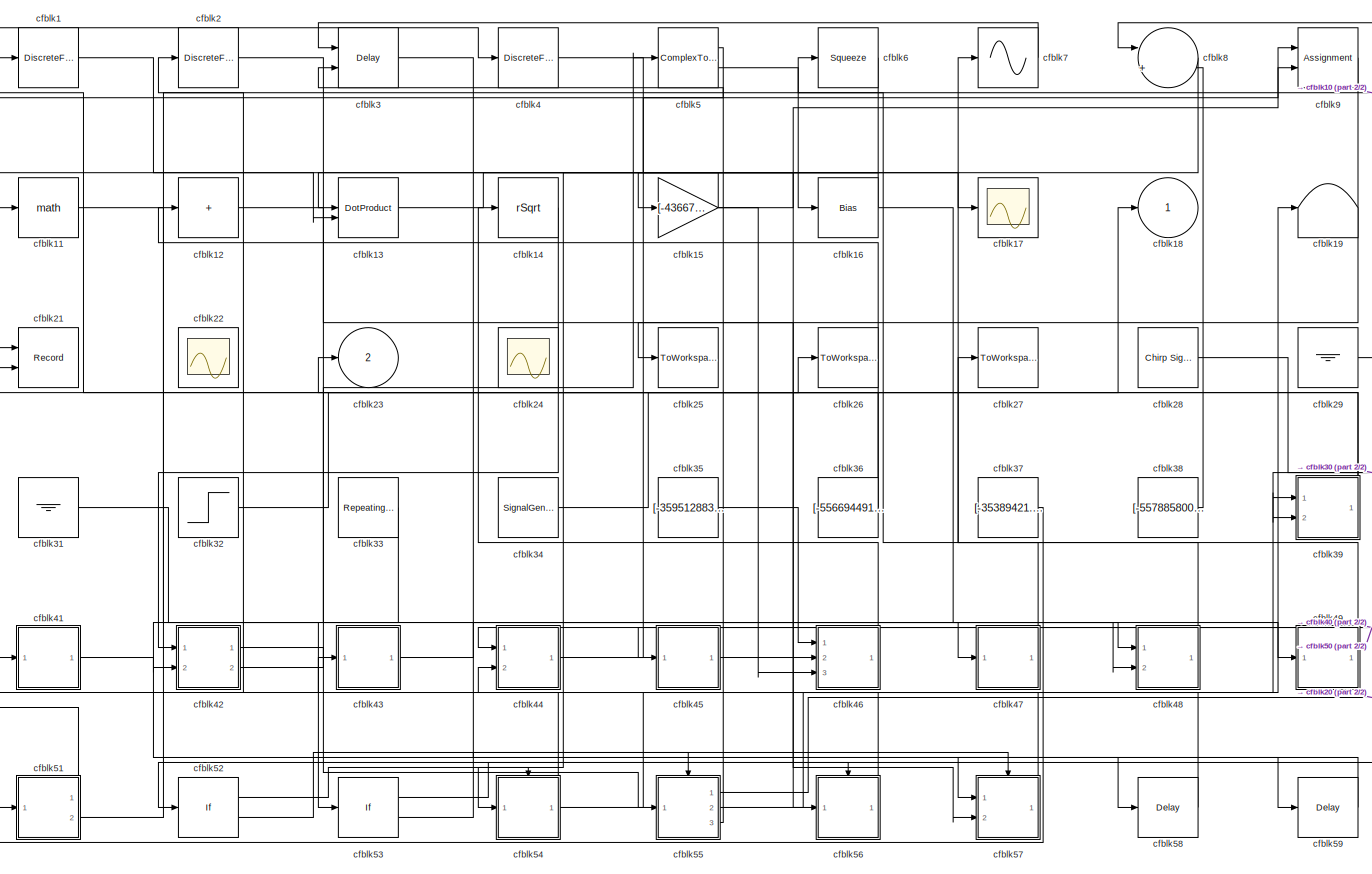
[diagram: root canvas - part 1/2, most of the canvas]
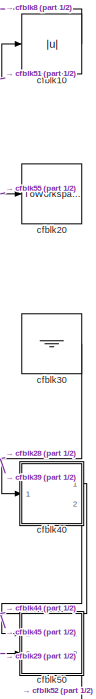
[diagram: root canvas - part 2/2, right side, full height]
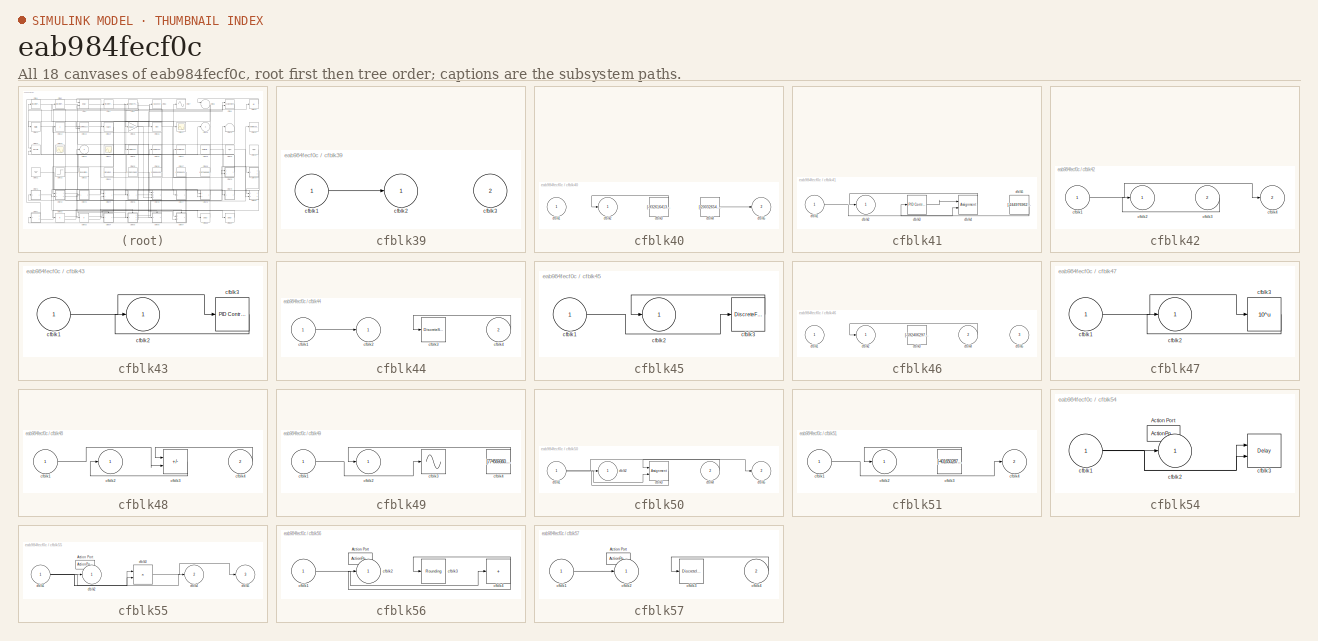
[diagram: thumbnail index - all 18 canvases of the model, root first then tree order]
MODEL slx_eab984fecf0c
KIND model
CONFIG AbsTol = auto
CONFIG EnableMultiTasking = off
CONFIG FixedStep = auto
CONFIG MaxStep = auto
CONFIG MinStep = auto
CONFIG RelTol = 1e-3
CONFIG SampleTimeConstraint = Unconstrained
CONFIG SolverName = VariableStepAuto
CONFIG StartTime = 0.0
CONFIG StopTime = 10.0
BLOCK [DiscreteFilter] cfblk1
  InputPortMap = u0
  Ports = [1, 1]
  SampleTime = 1
BLOCK [Abs] cfblk10
  SaturateOnIntegerOverflow = off
BLOCK [Math] cfblk11
  Ports = [1, 1]
BLOCK [Sum] cfblk12
  IconShape = rectangular
  Inputs = +
  Ports = [1, 1]
BLOCK [DotProduct] cfblk13
  OutDataTypeStr = Inherit: Inherit via internal rule
BLOCK [Sqrt] cfblk14
  AlgorithmType = Newton-Raphson
  Operator = rSqrt
BLOCK [Gain] cfblk15
  Gain = [-436679313.010726]
BLOCK [Bias] cfblk16
  Bias = [-38199327.268970]
  SaturateOnIntegerOverflow = off
BLOCK [Scope] cfblk17
  Floating = off
  NumInputPorts = 1
  Ports = [1]
BLOCK [Outport] cfblk18
BLOCK [Terminator] cfblk19
BLOCK [DiscreteFir] cfblk2
  InputPortMap = u0
  OutputPortMap = o0
  Ports = [1, 1]
  SampleTime = 1
BLOCK [ToWorkspace] cfblk20
  FixptAsFi = on
  MaxDataPoints = inf
  Ports = [1]
  SampleTime = -1
  SaveFormat = Timeseries
  VariableName = rfpiwdc
BLOCK [Record] cfblk21
  CompatibilityTag = XY
  FileSettingsInternal = {"entries":[{"content":{"excelSettings":{"content":{},"type":"Streamout.ExcelSettings"}},"type":"Streamout.FileSettingStorage","uuid":"e8f057ec-b7da-4268-aa5f-d7ed06ed3431"}],"packageUris":["http://schema.mathworks.com/mf0/streamout_blocks/R2020a"],"version":"1.0"}
  Layout = [1 1]
  Ports = [2]
  SignalsInternal = {"entries":[{"content":{"signals":[{"content":{"blockPath":["sampleModel11/cfblk21"],"channel":[],"dimensions":[1],"domain":"sampleModel11/cfblk21","lineColor":"#a2142f","plots":[1],"port":1,"sid":[""],"signalID":390,"signalName":"cfblk5:1"},"type":"RecordBlkView.Signal","uuid":"705c9504-6d64-4ff9-88c8-a38f2396cd2a"},{"content":{"blockPath":["sampleModel11/cfblk21"],"channel":[],"dimensions":[1],"...<+378ch>
  VisualizationBindings = {"xyplotplugin":{"info":[{"series":[{"bindingParametersList":[{"parameter":"X-Axis","signalID":390,"signalName":"cfblk5:1"},{"parameter":"Y-Axis","signalID":394,"signalName":"cfblk36"}],"seriesID":31932}],"subplotID":1}]}}
BLOCK [Scope] cfblk22
  Floating = on
  NumInputPorts = 1
  Ports = []
BLOCK [Outport] cfblk23
  Port = 2
BLOCK [Scope] cfblk24
  Floating = on
  NumInputPorts = 1
  Ports = []
BLOCK [ToWorkspace] cfblk25
  FixptAsFi = on
  MaxDataPoints = inf
  Ports = [1]
  SampleTime = -1
  SaveFormat = Timeseries
  VariableName = yddeclr
BLOCK [ToWorkspace] cfblk26
  FixptAsFi = on
  MaxDataPoints = inf
  Ports = [1]
  SampleTime = -1
  SaveFormat = Timeseries
  VariableName = vusmsyn
BLOCK [ToWorkspace] cfblk27
  FixptAsFi = on
  MaxDataPoints = inf
  Ports = [1]
  SampleTime = -1
  SaveFormat = Timeseries
  VariableName = huggmqp
BLOCK [Reference] cfblk28  REF=simulink/Sources/Chirp Signal
  Ports = [0, 1]
  SourceBlock = simulink/Sources/Chirp Signal
  SourceProductBaseCode = SL
  SourceType = chirp
BLOCK [Ground] cfblk29
BLOCK [Delay] cfblk3
  DelayLengthSource = Input port
  InputPortMap = u0,p1
  Ports = [2, 1]
  SampleTime = 1
BLOCK [Ground] cfblk30
BLOCK [Ground] cfblk31
BLOCK [Step] cfblk32
  After = [657963785.425429]
  Before = [-177383794.033925]
  SampleTime = 0
  Time = [37.000000]
BLOCK [Reference] cfblk33  REF=simulink/Sources/Repeating
Sequence
  Ports = [0, 1]
  SourceBlock = simulink/Sources/Repeating\nSequence
  SourceProductBaseCode = SL
  SourceType = Repeating table
BLOCK [SignalGenerator] cfblk34
  Amplitude = [-895577239.738849]
  Ports = [0, 1]
  WaveForm = square
BLOCK [Constant] cfblk35
  SampleTime = 1
  Value = [-359512883.791570]
BLOCK [Constant] cfblk36
  SampleTime = 1
  Value = [-556694491.048101]
BLOCK [Constant] cfblk37
  SampleTime = 1
  Value = [-35389421.283993]
BLOCK [Constant] cfblk38
  SampleTime = 1
  Value = [-557885800.592735]
BLOCK [SubSystem] cfblk39
  Ports = [2, 1]
  RequestExecContextInheritance = off
BLOCK [Inport] cfblk39/cfblk1
BLOCK [Outport] cfblk39/cfblk2
BLOCK [Inport] cfblk39/cfblk3
  Port = 2
BLOCK [DiscreteFir] cfblk4
  InputPortMap = u0
  OutputPortMap = o0
  Ports = [1, 1]
  SampleTime = 1
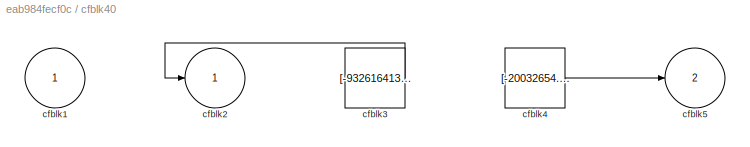
BLOCK [SubSystem] cfblk40
  Ports = [1, 2]
  RequestExecContextInheritance = off
BLOCK [Inport] cfblk40/cfblk1
BLOCK [Outport] cfblk40/cfblk2
BLOCK [Constant] cfblk40/cfblk3
  SampleTime = 1
  Value = [-932616413.757976]
BLOCK [Constant] cfblk40/cfblk4
  SampleTime = 1
  Value = [-20032654.387493]
BLOCK [Outport] cfblk40/cfblk5
  Port = 2
BLOCK [SubSystem] cfblk41
  Ports = [1, 1]
  RequestExecContextInheritance = off
BLOCK [Inport] cfblk41/cfblk1
BLOCK [Outport] cfblk41/cfblk2
BLOCK [Reference] cfblk41/cfblk3  REF=slpidlib/PID Controller
  Ports = [1, 1]
  SourceBlock = slpidlib/PID Controller
  SourceProductBaseCode = SL
  SourceType = PID 1dof
BLOCK [Assignment] cfblk41/cfblk4
  DiagnosticForDimensions = Warning
  IndexOptions = Index vector (dialog)
  Indices = 1
  OutputSizes = 1
  Ports = [2, 1]
BLOCK [Constant] cfblk41/cfblk5
  SampleTime = 1
  Value = [-244976962.474506]
BLOCK [SubSystem] cfblk42
  Ports = [2, 2]
  RequestExecContextInheritance = off
BLOCK [Inport] cfblk42/cfblk1
BLOCK [Outport] cfblk42/cfblk2
BLOCK [Inport] cfblk42/cfblk3
  Port = 2
BLOCK [Outport] cfblk42/cfblk4
  Port = 2
BLOCK [SubSystem] cfblk43
  Ports = [1, 1]
  RequestExecContextInheritance = off
BLOCK [Inport] cfblk43/cfblk1
BLOCK [Outport] cfblk43/cfblk2
BLOCK [Reference] cfblk43/cfblk3  REF=slpidlib/PID Controller
  Ports = [1, 1]
  SourceBlock = slpidlib/PID Controller
  SourceProductBaseCode = SL
  SourceType = PID 1dof
BLOCK [SubSystem] cfblk44
  Ports = [2, 1]
  RequestExecContextInheritance = off
BLOCK [Inport] cfblk44/cfblk1
BLOCK [Outport] cfblk44/cfblk2
BLOCK [DiscreteStateSpace] cfblk44/cfblk3
BLOCK [Inport] cfblk44/cfblk4
  Port = 2
BLOCK [SubSystem] cfblk45
  Ports = [1, 1]
  RequestExecContextInheritance = off
BLOCK [Inport] cfblk45/cfblk1
BLOCK [Outport] cfblk45/cfblk2
BLOCK [DiscreteFir] cfblk45/cfblk3
  InputPortMap = u0
  OutputPortMap = o0
  Ports = [1, 1]
  SampleTime = 1
BLOCK [SubSystem] cfblk46
  Ports = [3, 1]
  RequestExecContextInheritance = off
BLOCK [Inport] cfblk46/cfblk1
BLOCK [Outport] cfblk46/cfblk2
BLOCK [Constant] cfblk46/cfblk3
  SampleTime = 1
  Value = [-592406297.905312]
BLOCK [Inport] cfblk46/cfblk4
  Port = 2
BLOCK [Inport] cfblk46/cfblk5
  Port = 3
BLOCK [SubSystem] cfblk47
  Ports = [1, 1]
  RequestExecContextInheritance = off
BLOCK [Inport] cfblk47/cfblk1
BLOCK [Outport] cfblk47/cfblk2
BLOCK [Math] cfblk47/cfblk3
  Operator = 10^u
  Ports = [1, 1]
BLOCK [SubSystem] cfblk48
  Ports = [2, 1]
  RequestExecContextInheritance = off
BLOCK [Inport] cfblk48/cfblk1
BLOCK [Outport] cfblk48/cfblk2
BLOCK [Sum] cfblk48/cfblk3
  IconShape = rectangular
  Inputs = +-
  Ports = [2, 1]
BLOCK [Inport] cfblk48/cfblk4
  Port = 2
BLOCK [SubSystem] cfblk49
  Ports = [1, 1]
  RequestExecContextInheritance = off
BLOCK [Inport] cfblk49/cfblk1
BLOCK [Outport] cfblk49/cfblk2
BLOCK [Sin] cfblk49/cfblk3
  Ports = [1, 1]
  SampleTime = 0
  TimeSource = Use external signal
BLOCK [Constant] cfblk49/cfblk4
  SampleTime = 1
  Value = [774569360.055775]
BLOCK [ComplexToMagnitudeAngle] cfblk5
  Ports = [1, 2]
BLOCK [SubSystem] cfblk50
  Ports = [2, 2]
  RequestExecContextInheritance = off
BLOCK [Inport] cfblk50/cfblk1
BLOCK [Outport] cfblk50/cfblk2
BLOCK [Assignment] cfblk50/cfblk3
  DiagnosticForDimensions = Warning
  IndexOptions = Index vector (dialog)
  Indices = 1
  OutputSizes = 1
  Ports = [2, 1]
BLOCK [Inport] cfblk50/cfblk4
  Port = 2
BLOCK [Outport] cfblk50/cfblk5
  Port = 2
BLOCK [SubSystem] cfblk51
  Ports = [1, 2]
  RequestExecContextInheritance = off
BLOCK [Inport] cfblk51/cfblk1
BLOCK [Outport] cfblk51/cfblk2
BLOCK [Constant] cfblk51/cfblk3
  SampleTime = 1
  Value = [-401650287.131172]
BLOCK [Outport] cfblk51/cfblk4
  Port = 2
BLOCK [If] cfblk52
  IfExpression = u1 >= 0
  Ports = [1, 2]
  SampleTime = 1
BLOCK [If] cfblk53
  IfExpression = u1 >= 0
  Ports = [1, 2]
  SampleTime = 1
BLOCK [SubSystem] cfblk54
  Ports = [1, 1, 0, 0, 0, 0, 0, 1]
  RequestExecContextInheritance = off
  TreatAsAtomicUnit = on
BLOCK [ActionPort] cfblk54/Action Port
  ActionPortLabel = if(u1 >= 0)
BLOCK [Inport] cfblk54/cfblk1
BLOCK [Outport] cfblk54/cfblk2
BLOCK [Delay] cfblk54/cfblk3
  InputPortMap = u0,e6
  Ports = [2, 1]
  ShowEnablePort = on
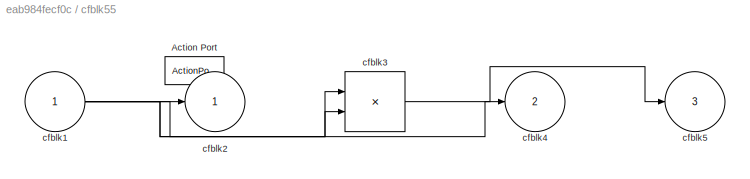
BLOCK [SubSystem] cfblk55
  Ports = [1, 3, 0, 0, 0, 0, 0, 1]
  RequestExecContextInheritance = off
  TreatAsAtomicUnit = on
BLOCK [ActionPort] cfblk55/Action Port
  ActionPortLabel = else
BLOCK [Inport] cfblk55/cfblk1
BLOCK [Outport] cfblk55/cfblk2
BLOCK [Product] cfblk55/cfblk3
  Inputs = **
  Ports = [2, 1]
BLOCK [Outport] cfblk55/cfblk4
  Port = 2
BLOCK [Outport] cfblk55/cfblk5
  Port = 3
BLOCK [SubSystem] cfblk56
  Ports = [1, 1, 0, 0, 0, 0, 0, 1]
  RequestExecContextInheritance = off
  TreatAsAtomicUnit = on
BLOCK [ActionPort] cfblk56/Action Port
  ActionPortLabel = if(u1 >= 0)
BLOCK [Inport] cfblk56/cfblk1
BLOCK [Outport] cfblk56/cfblk2
BLOCK [Rounding] cfblk56/cfblk3
BLOCK [Sum] cfblk56/cfblk4
  IconShape = rectangular
  Inputs = +
  Ports = [1, 1]
BLOCK [SubSystem] cfblk57
  Ports = [2, 1, 0, 0, 0, 0, 0, 1]
  RequestExecContextInheritance = off
  TreatAsAtomicUnit = on
BLOCK [ActionPort] cfblk57/Action Port
  ActionPortLabel = else
BLOCK [Inport] cfblk57/cfblk1
BLOCK [Outport] cfblk57/cfblk2
BLOCK [DiscreteIntegrator] cfblk57/cfblk3
  ICPrevOutput = DiscIntNeverNeededParam
  ICPrevScaledInput = DiscIntNeverNeededParam
  InitialConditionSetting = Auto
  Ports = [1, 1]
  SampleTime = -1
BLOCK [Inport] cfblk57/cfblk4
  Port = 2
BLOCK [Delay] cfblk58
  InputPortMap = u0
  Ports = [1, 1]
  SampleTime = 1
BLOCK [Delay] cfblk59
  InputPortMap = u0
  Ports = [1, 1]
  SampleTime = 1
BLOCK [Squeeze] cfblk6
BLOCK [Sin] cfblk7
  Ports = [1, 1]
  SampleTime = 0
  TimeSource = Use external signal
BLOCK [Sum] cfblk8
  Inputs = |++
  Ports = [2, 1]
BLOCK [Assignment] cfblk9
  DiagnosticForDimensions = Warning
  IndexOptions = Index vector (dialog)
  Indices = 1
  OutputSizes = 1
  Ports = [2, 1]
LINE cfblk10:1 -> cfblk8:1
LINE cfblk11:1 -> cfblk49:1
LINE cfblk12:1 -> cfblk46:2
LINE cfblk13:1 -> cfblk17:1
LINE cfblk14:1 -> cfblk42:1
NET cfblk15:1 -> cfblk13:1, cfblk46:3, cfblk9:2
NET cfblk16:1 -> cfblk11:1, cfblk48:2
LINE cfblk1:1 -> cfblk13:2
LINE cfblk28:1 -> cfblk40:1
LINE cfblk29:1 -> cfblk50:2
LINE cfblk2:1 -> cfblk47:1
LINE cfblk30:1 -> cfblk39:2
LINE cfblk31:1 -> cfblk53:1
LINE cfblk32:1 -> cfblk18:1
LINE cfblk33:1 -> cfblk42:2
LINE cfblk34:1 -> cfblk26:1
LINE cfblk35:1 -> cfblk46:1
NET cfblk36:1 -> cfblk12:1, cfblk21:2
LINE cfblk37:1 -> cfblk51:1
LINE cfblk38:1 -> cfblk8:2
LINE cfblk39/cfblk1:1 -> cfblk39/cfblk2:1
NET cfblk39:1 -> cfblk1:1, cfblk23:1
LINE cfblk3:1 -> cfblk58:1
LINE cfblk40/cfblk3:1 -> cfblk40/cfblk2:1
LINE cfblk40/cfblk4:1 -> cfblk40/cfblk5:1
LINE cfblk40:1 -> cfblk45:1
LINE cfblk40:2 -> cfblk50:1
LINE cfblk41/cfblk1:1 -> cfblk41/cfblk4:2
LINE cfblk41/cfblk3:1 -> cfblk41/cfblk4:1
LINE cfblk41/cfblk4:1 -> cfblk41/cfblk2:1
LINE cfblk41/cfblk5:1 -> cfblk41/cfblk3:1
LINE cfblk41:1 -> cfblk59:1
LINE cfblk42/cfblk1:1 -> cfblk42/cfblk4:1
LINE cfblk42/cfblk3:1 -> cfblk42/cfblk2:1
LINE cfblk42:1 -> cfblk55:1
LINE cfblk42:2 -> cfblk5:1
LINE cfblk43/cfblk1:1 -> cfblk43/cfblk3:1
LINE cfblk43/cfblk3:1 -> cfblk43/cfblk2:1
LINE cfblk43:1 -> cfblk48:1
LINE cfblk44/cfblk1:1 -> cfblk44/cfblk2:1
LINE cfblk44/cfblk4:1 -> cfblk44/cfblk3:1
LINE cfblk44:1 -> cfblk9:1
LINE cfblk45/cfblk1:1 -> cfblk45/cfblk3:1
LINE cfblk45/cfblk3:1 -> cfblk45/cfblk2:1
LINE cfblk45:1 -> cfblk57:2
LINE cfblk46/cfblk4:1 -> cfblk46/cfblk2:1
LINE cfblk46:1 -> cfblk14:1
LINE cfblk47/cfblk1:1 -> cfblk47/cfblk3:1
LINE cfblk47/cfblk3:1 -> cfblk47/cfblk2:1
LINE cfblk47:1 -> cfblk7:1
LINE cfblk48/cfblk1:1 -> cfblk48/cfblk3:2
LINE cfblk48/cfblk3:1 -> cfblk48/cfblk2:1
LINE cfblk48/cfblk4:1 -> cfblk48/cfblk3:1
LINE cfblk48:1 -> cfblk27:1
LINE cfblk49/cfblk1:1 -> cfblk49/cfblk3:1
LINE cfblk49/cfblk4:1 -> cfblk49/cfblk2:1
LINE cfblk49:1 -> cfblk6:1
LINE cfblk4:1 -> cfblk56:1
NET cfblk50/cfblk1:1 -> cfblk50/cfblk3:2, cfblk50/cfblk5:1
LINE cfblk50/cfblk3:1 -> cfblk50/cfblk2:1
LINE cfblk50/cfblk4:1 -> cfblk50/cfblk3:1
LINE cfblk50:1 -> cfblk44:1
LINE cfblk50:2 -> cfblk52:1
LINE cfblk51/cfblk1:1 -> cfblk51/cfblk4:1
LINE cfblk51/cfblk3:1 -> cfblk51/cfblk2:1
LINE cfblk51:1 -> cfblk4:1
LINE cfblk51:2 -> cfblk10:1
LINE cfblk52:1 -> cfblk54:ifaction
LINE cfblk52:2 -> cfblk55:ifaction
LINE cfblk53:1 -> cfblk56:ifaction
LINE cfblk53:2 -> cfblk57:ifaction
NET cfblk54/cfblk1:1 -> cfblk54/cfblk2:1, cfblk54/cfblk3:1, cfblk54/cfblk3:2
NET cfblk54:1 -> cfblk19:1, cfblk43:1
NET cfblk55/cfblk1:1 -> cfblk55/cfblk2:1, cfblk55/cfblk3:1, cfblk55/cfblk3:2, cfblk55/cfblk4:1
LINE cfblk55/cfblk3:1 -> cfblk55/cfblk5:1
LINE cfblk55:1 -> cfblk20:1
LINE cfblk55:2 -> cfblk39:1
LINE cfblk55:3 -> cfblk3:2
LINE cfblk56/cfblk1:1 -> cfblk56/cfblk4:1
NET cfblk56/cfblk4:1 -> cfblk56/cfblk2:1, cfblk56/cfblk3:1
LINE cfblk56:1 -> cfblk44:2
LINE cfblk57/cfblk1:1 -> cfblk57/cfblk2:1
LINE cfblk57/cfblk4:1 -> cfblk57/cfblk3:1
LINE cfblk57:1 -> cfblk41:1
LINE cfblk58:1 -> cfblk2:1
LINE cfblk59:1 -> cfblk57:1
LINE cfblk5:1 -> cfblk21:1
LINE cfblk5:2 -> cfblk16:1
LINE cfblk6:1 -> cfblk54:1
LINE cfblk7:1 -> cfblk3:1
LINE cfblk8:1 -> cfblk15:1
LINE cfblk9:1 -> cfblk25:1
note: NET lines group one-source signal fan-out (src -> all destinations, sorted); 1:1 wires keep LINE
